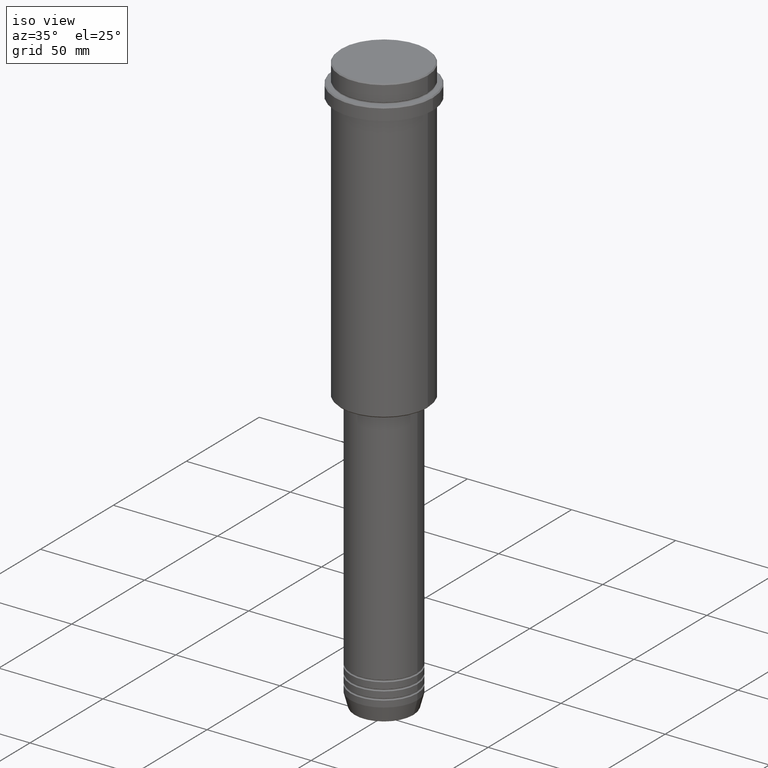
[diagram: clean part render]
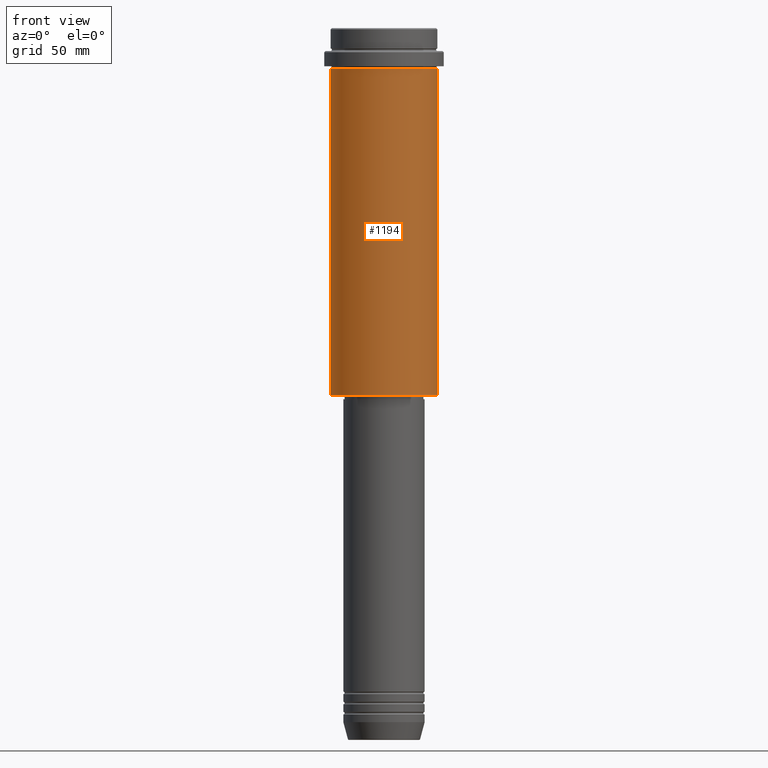
[diagram: tour spotlight — one face highlighted and labeled with its STEP entity id]
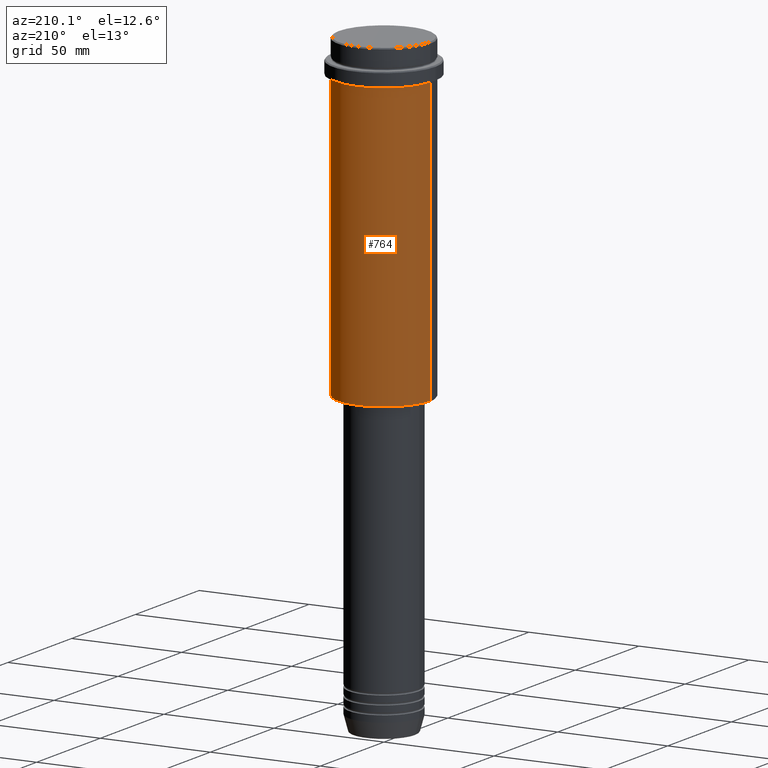
[diagram: tour spotlight — one face highlighted and labeled with its STEP entity id]
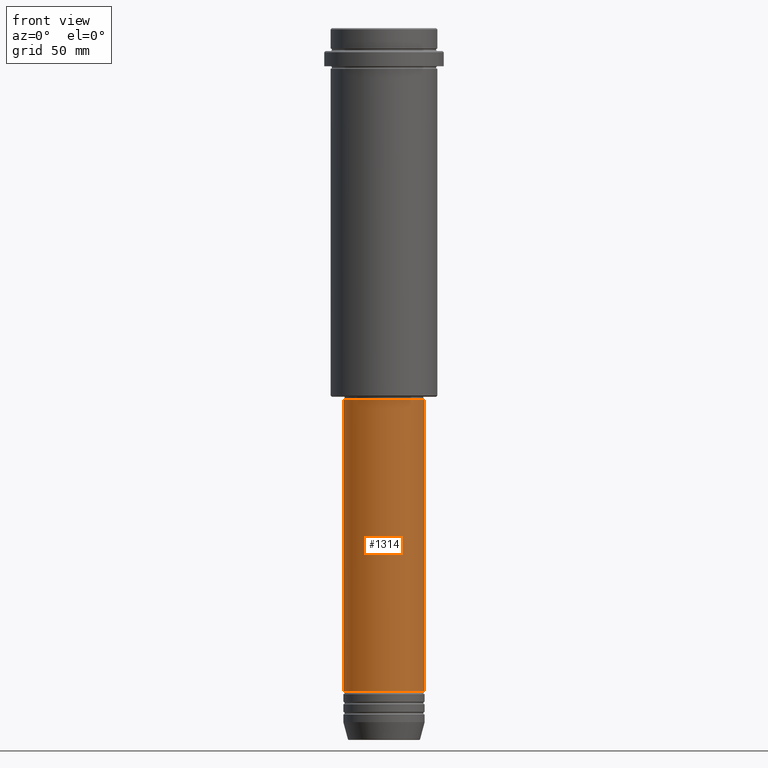
[diagram: tour spotlight — one face highlighted and labeled with its STEP entity id]
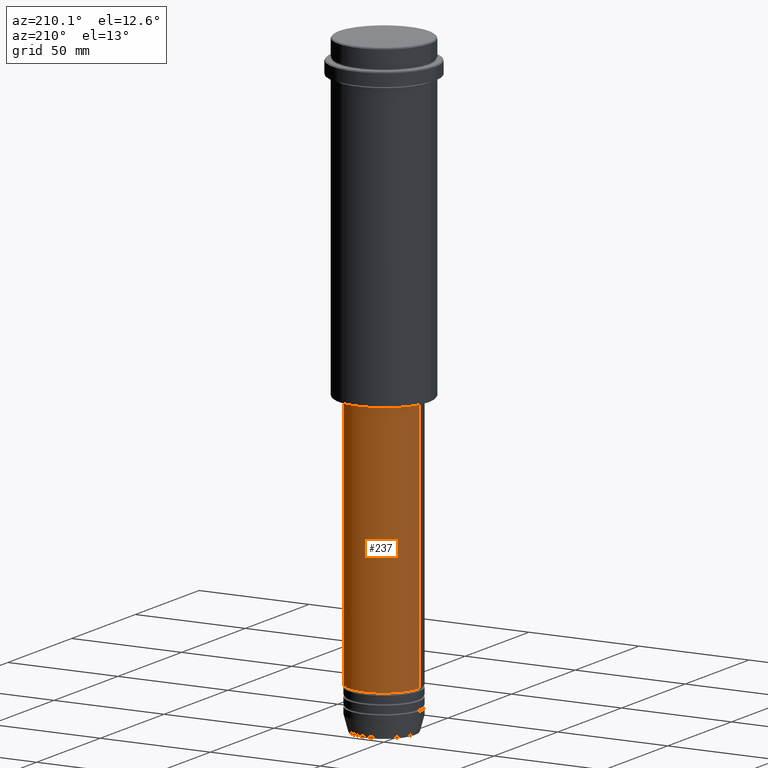
[diagram: tour spotlight — one face highlighted and labeled with its STEP entity id]
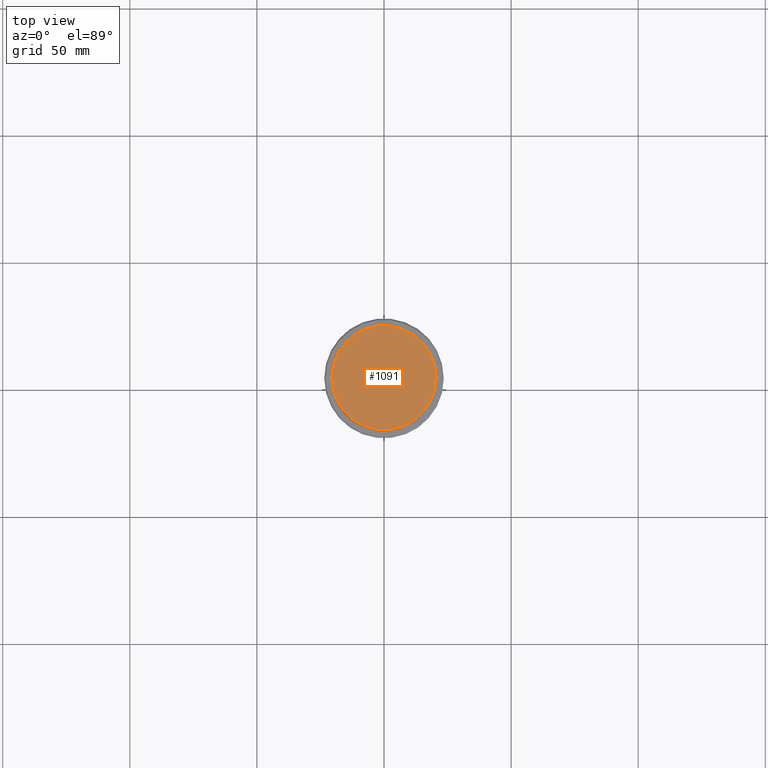
[diagram: tour spotlight — one face highlighted and labeled with its STEP entity id]
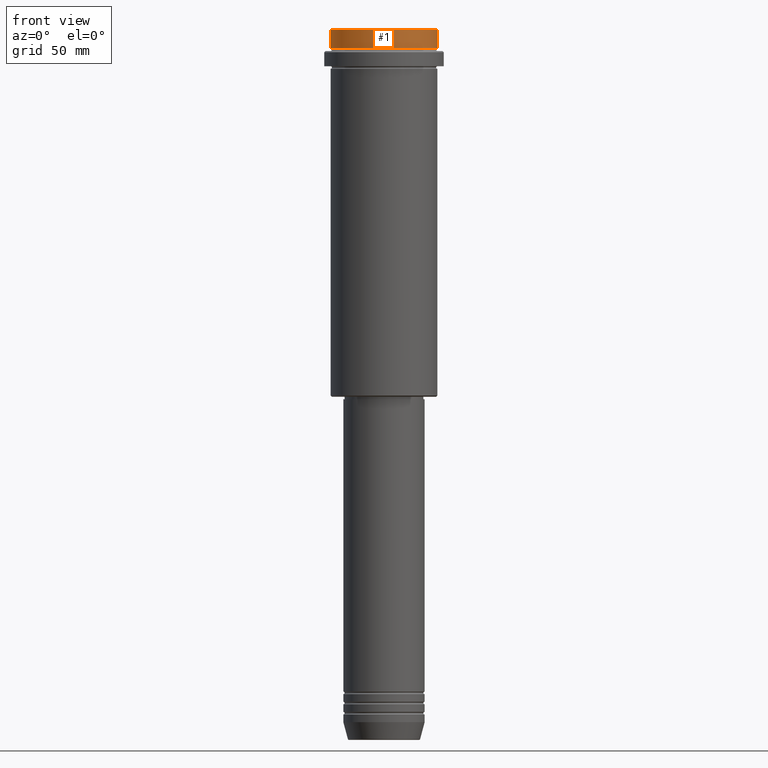
[diagram: tour spotlight — one face highlighted and labeled with its STEP entity id]
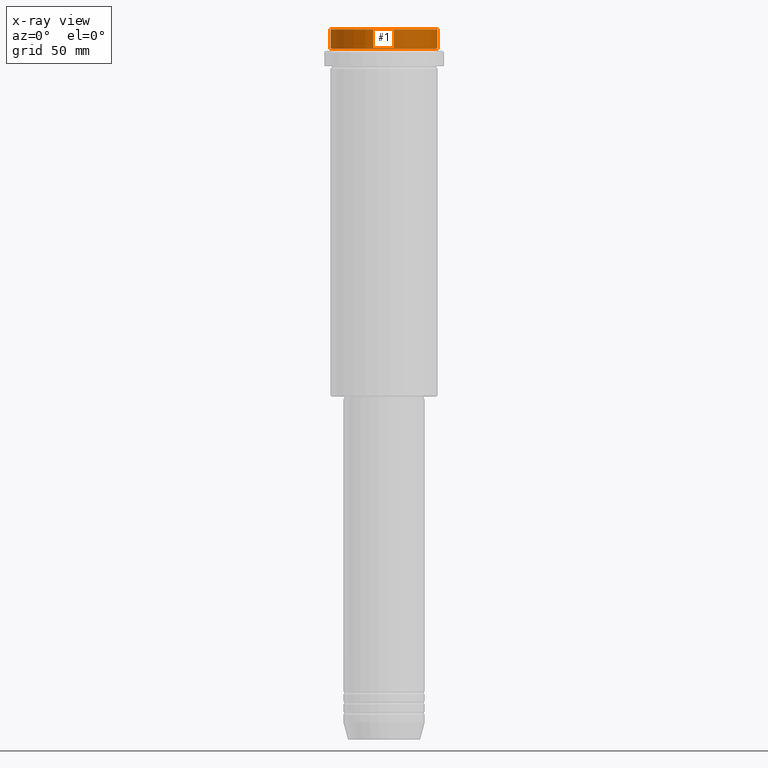
[diagram: x-ray of the same camera — body ghosted, this tour face saturated]
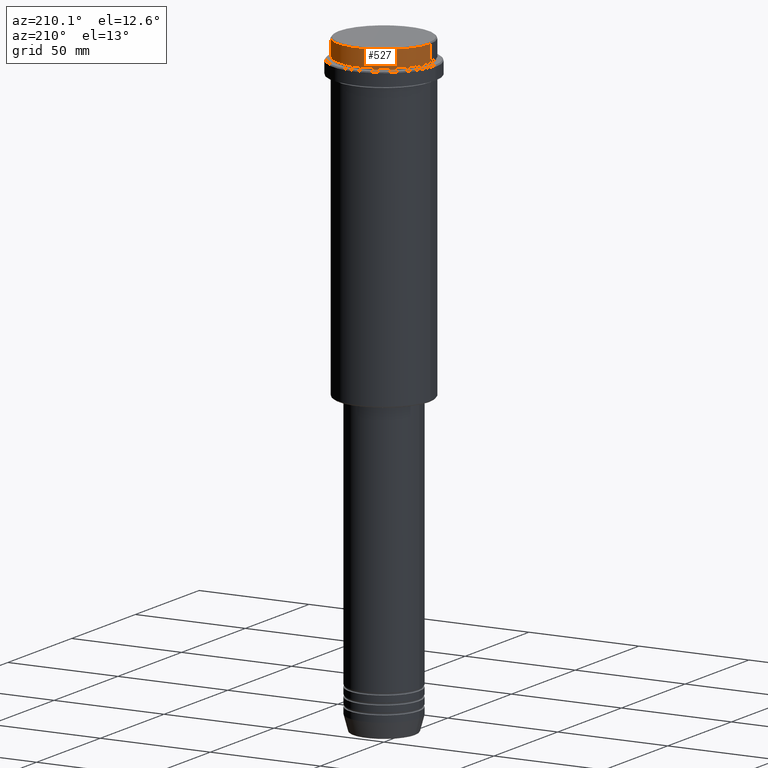
[diagram: tour spotlight — one face highlighted and labeled with its STEP entity id]
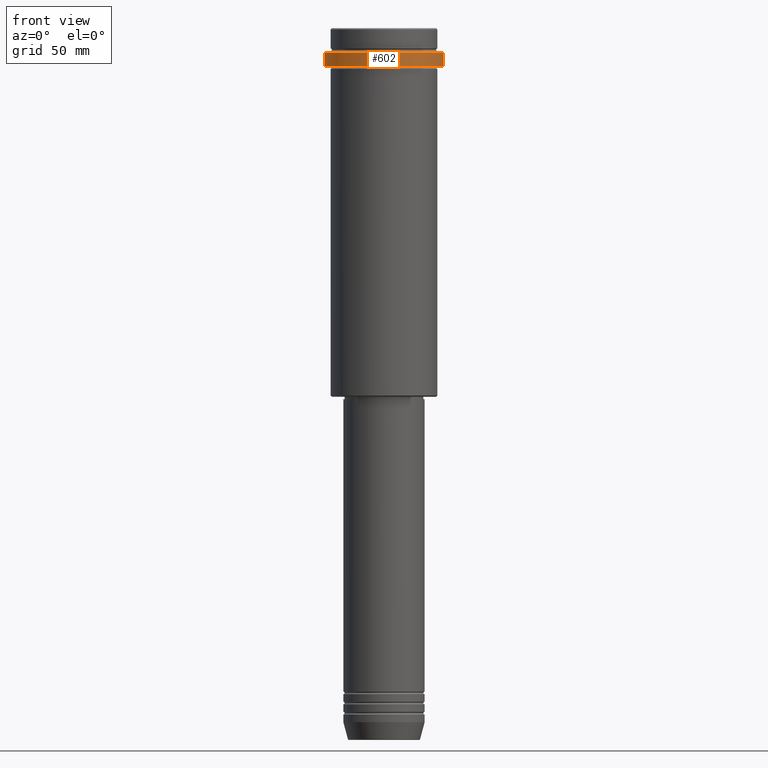
[diagram: tour spotlight — one face highlighted and labeled with its STEP entity id]
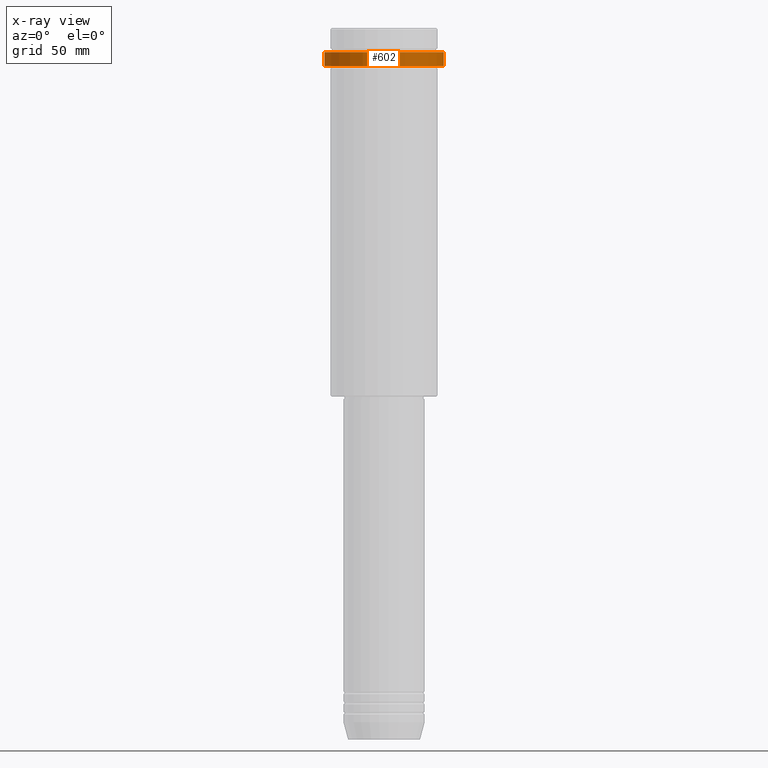
[diagram: x-ray of the same camera — body ghosted, this tour face saturated]
A machine part: a face-by-face anatomy tour. The part has 52 B-rep faces; the first image is the clean iso view, then the 8 largest visible faces are spotlighted one at a time (largest first), each with its STEP entity span.

Face 1 — front view, entity #1194. In plain terms, the highlighted cylindrical surface (partial cylindrical patch) has radius 21 mm, axis along (-0, -0, 1).
Definition (entity closure, byte-faithful):
#7 = CARTESIAN_POINT ( 'NONE',  ( 20.99999999999999645, 0.000000000000000000, -16.00000000000000355 ) ) ;
#22 = DIRECTION ( 'NONE',  ( -1.000000000000000000, 0.000000000000000000, 0.000000000000000000 ) ) ;
#104 = CARTESIAN_POINT ( 'NONE',  ( -20.99999999999999645, 2.571758278209441267E-15, 0.000000000000000000 ) ) ;
#219 = EDGE_LOOP ( 'NONE', ( #696, #614, #1352, #374 ) ) ;
#295 = DIRECTION ( 'NONE',  ( 1.000000000000000000, 0.000000000000000000, 0.000000000000000000 ) ) ;
#301 = AXIS2_PLACEMENT_3D ( 'NONE', #518, #1281, #295 ) ;
#347 = EDGE_CURVE ( 'NONE', #382, #559, #783, .T. ) ;
#361 = DIRECTION ( 'NONE',  ( -0.000000000000000000, -0.000000000000000000, 1.000000000000000000 ) ) ;
#374 = ORIENTED_EDGE ( 'NONE', *, *, #1020, .F. ) ;
#382 = VERTEX_POINT ( 'NONE', #1235 ) ;
#493 = DIRECTION ( 'NONE',  ( -0.000000000000000000, -0.000000000000000000, 1.000000000000000000 ) ) ;
#510 = CARTESIAN_POINT ( 'NONE',  ( 20.99999999999999645, 0.000000000000000000, -144.5000000000000568 ) ) ;
#518 = CARTESIAN_POINT ( 'NONE',  ( 0.000000000000000000, 0.000000000000000000, -16.00000000000000355 ) ) ;
#559 = VERTEX_POINT ( 'NONE', #510 ) ;
#579 = CYLINDRICAL_SURFACE ( 'NONE', #1265, 20.99999999999999645 ) ;
#614 = ORIENTED_EDGE ( 'NONE', *, *, #347, .T. ) ;
#647 = LINE ( 'NONE', #104, #1125 ) ;
#680 = EDGE_CURVE ( 'NONE', #382, #1226, #647, .T. ) ;
#696 = ORIENTED_EDGE ( 'NONE', *, *, #680, .F. ) ;
#700 = DIRECTION ( 'NONE',  ( 1.000000000000000000, 0.000000000000000000, 0.000000000000000000 ) ) ;
#783 = CIRCLE ( 'NONE', #1130, 20.99999999999999645 ) ;
#812 = CARTESIAN_POINT ( 'NONE',  ( 20.99999999999999645, 0.000000000000000000, 0.000000000000000000 ) ) ;
#833 = DIRECTION ( 'NONE',  ( -0.000000000000000000, -0.000000000000000000, 1.000000000000000000 ) ) ;
#860 = VERTEX_POINT ( 'NONE', #7 ) ;
#869 = VECTOR ( 'NONE', #833, 1000.000000000000000 ) ;
#871 = CARTESIAN_POINT ( 'NONE',  ( 0.000000000000000000, 0.000000000000000000, -144.5000000000000568 ) ) ;
#918 = CIRCLE ( 'NONE', #301, 20.99999999999999645 ) ;
#961 = EDGE_CURVE ( 'NONE', #559, #860, #1057, .T. ) ;
#999 = CARTESIAN_POINT ( 'NONE',  ( -20.99999999999999645, 2.571758278209441267E-15, -16.00000000000000355 ) ) ;
#1020 = EDGE_CURVE ( 'NONE', #1226, #860, #918, .T. ) ;
#1057 = LINE ( 'NONE', #812, #869 ) ;
#1125 = VECTOR ( 'NONE', #493, 1000.000000000000000 ) ;
#1130 = AXIS2_PLACEMENT_3D ( 'NONE', #871, #361, #22 ) ;
#1194 = ADVANCED_FACE ( 'NONE', ( #1328 ), #579, .T. ) ;
#1214 = DIRECTION ( 'NONE',  ( -0.000000000000000000, -0.000000000000000000, 1.000000000000000000 ) ) ;
#1226 = VERTEX_POINT ( 'NONE', #999 ) ;
#1235 = CARTESIAN_POINT ( 'NONE',  ( -20.99999999999999645, 2.571758278209441267E-15, -144.5000000000000568 ) ) ;
#1265 = AXIS2_PLACEMENT_3D ( 'NONE', #1320, #1214, #700 ) ;
#1281 = DIRECTION ( 'NONE',  ( -0.000000000000000000, -0.000000000000000000, 1.000000000000000000 ) ) ;
#1320 = CARTESIAN_POINT ( 'NONE',  ( 0.000000000000000000, 0.000000000000000000, 0.000000000000000000 ) ) ;
#1328 = FACE_OUTER_BOUND ( 'NONE', #219, .T. ) ;
#1352 = ORIENTED_EDGE ( 'NONE', *, *, #961, .T. ) ;

Face 2 — auxiliary view, entity #764. In plain terms, the highlighted cylindrical surface (partial cylindrical patch) has radius 21 mm, axis along (-0, -0, 1).
Definition (entity closure, byte-faithful):
#7 = CARTESIAN_POINT ( 'NONE',  ( 20.99999999999999645, 0.000000000000000000, -16.00000000000000355 ) ) ;
#47 = CIRCLE ( 'NONE', #556, 20.99999999999999645 ) ;
#93 = AXIS2_PLACEMENT_3D ( 'NONE', #507, #1072, #395 ) ;
#104 = CARTESIAN_POINT ( 'NONE',  ( -20.99999999999999645, 2.571758278209441267E-15, 0.000000000000000000 ) ) ;
#215 = EDGE_LOOP ( 'NONE', ( #1342, #238, #1293, #275 ) ) ;
#233 = CYLINDRICAL_SURFACE ( 'NONE', #460, 20.99999999999999645 ) ;
#238 = ORIENTED_EDGE ( 'NONE', *, *, #680, .T. ) ;
#240 = DIRECTION ( 'NONE',  ( 1.000000000000000000, 0.000000000000000000, 0.000000000000000000 ) ) ;
#275 = ORIENTED_EDGE ( 'NONE', *, *, #961, .F. ) ;
#368 = CARTESIAN_POINT ( 'NONE',  ( 0.000000000000000000, 0.000000000000000000, 0.000000000000000000 ) ) ;
#382 = VERTEX_POINT ( 'NONE', #1235 ) ;
#395 = DIRECTION ( 'NONE',  ( 1.000000000000000000, 0.000000000000000000, 0.000000000000000000 ) ) ;
#460 = AXIS2_PLACEMENT_3D ( 'NONE', #368, #1021, #240 ) ;
#493 = DIRECTION ( 'NONE',  ( -0.000000000000000000, -0.000000000000000000, 1.000000000000000000 ) ) ;
#507 = CARTESIAN_POINT ( 'NONE',  ( 0.000000000000000000, 0.000000000000000000, -16.00000000000000355 ) ) ;
#510 = CARTESIAN_POINT ( 'NONE',  ( 20.99999999999999645, 0.000000000000000000, -144.5000000000000568 ) ) ;
#556 = AXIS2_PLACEMENT_3D ( 'NONE', #905, #1417, #1334 ) ;
#559 = VERTEX_POINT ( 'NONE', #510 ) ;
#635 = EDGE_CURVE ( 'NONE', #860, #1226, #868, .T. ) ;
#647 = LINE ( 'NONE', #104, #1125 ) ;
#680 = EDGE_CURVE ( 'NONE', #382, #1226, #647, .T. ) ;
#764 = ADVANCED_FACE ( 'NONE', ( #780 ), #233, .T. ) ;
#780 = FACE_OUTER_BOUND ( 'NONE', #215, .T. ) ;
#812 = CARTESIAN_POINT ( 'NONE',  ( 20.99999999999999645, 0.000000000000000000, 0.000000000000000000 ) ) ;
#833 = DIRECTION ( 'NONE',  ( -0.000000000000000000, -0.000000000000000000, 1.000000000000000000 ) ) ;
#860 = VERTEX_POINT ( 'NONE', #7 ) ;
#868 = CIRCLE ( 'NONE', #93, 20.99999999999999645 ) ;
#869 = VECTOR ( 'NONE', #833, 1000.000000000000000 ) ;
#905 = CARTESIAN_POINT ( 'NONE',  ( 0.000000000000000000, 0.000000000000000000, -144.5000000000000568 ) ) ;
#961 = EDGE_CURVE ( 'NONE', #559, #860, #1057, .T. ) ;
#999 = CARTESIAN_POINT ( 'NONE',  ( -20.99999999999999645, 2.571758278209441267E-15, -16.00000000000000355 ) ) ;
#1021 = DIRECTION ( 'NONE',  ( -0.000000000000000000, -0.000000000000000000, 1.000000000000000000 ) ) ;
#1057 = LINE ( 'NONE', #812, #869 ) ;
#1072 = DIRECTION ( 'NONE',  ( -0.000000000000000000, -0.000000000000000000, 1.000000000000000000 ) ) ;
#1125 = VECTOR ( 'NONE', #493, 1000.000000000000000 ) ;
#1223 = EDGE_CURVE ( 'NONE', #559, #382, #47, .T. ) ;
#1226 = VERTEX_POINT ( 'NONE', #999 ) ;
#1235 = CARTESIAN_POINT ( 'NONE',  ( -20.99999999999999645, 2.571758278209441267E-15, -144.5000000000000568 ) ) ;
#1293 = ORIENTED_EDGE ( 'NONE', *, *, #635, .F. ) ;
#1334 = DIRECTION ( 'NONE',  ( -1.000000000000000000, 0.000000000000000000, 0.000000000000000000 ) ) ;
#1342 = ORIENTED_EDGE ( 'NONE', *, *, #1223, .T. ) ;
#1417 = DIRECTION ( 'NONE',  ( -0.000000000000000000, -0.000000000000000000, 1.000000000000000000 ) ) ;

Face 3 — front view, entity #1314. In plain terms, the highlighted cylindrical surface (partial cylindrical patch) has radius 16 mm, axis along (-0, -0, 1).
Definition (entity closure, byte-faithful):
#2 = EDGE_CURVE ( 'NONE', #862, #798, #946, .T. ) ;
#85 = EDGE_CURVE ( 'NONE', #320, #798, #190, .T. ) ;
#154 = FACE_OUTER_BOUND ( 'NONE', #482, .T. ) ;
#172 = ORIENTED_EDGE ( 'NONE', *, *, #85, .F. ) ;
#190 = CIRCLE ( 'NONE', #305, 16.00000000000000355 ) ;
#228 = CIRCLE ( 'NONE', #1270, 16.00000000000000000 ) ;
#263 = CARTESIAN_POINT ( 'NONE',  ( -16.00000000000000355, 1.959434878635765526E-15, -146.0000000000000284 ) ) ;
#264 = DIRECTION ( 'NONE',  ( -0.000000000000000000, -0.000000000000000000, 1.000000000000000000 ) ) ;
#305 = AXIS2_PLACEMENT_3D ( 'NONE', #1192, #854, #882 ) ;
#320 = VERTEX_POINT ( 'NONE', #263 ) ;
#396 = CARTESIAN_POINT ( 'NONE',  ( 0.000000000000000000, 0.000000000000000000, 0.000000000000000000 ) ) ;
#473 = DIRECTION ( 'NONE',  ( 1.000000000000000000, 0.000000000000000000, 0.000000000000000000 ) ) ;
#482 = EDGE_LOOP ( 'NONE', ( #805, #818, #879, #172 ) ) ;
#539 = EDGE_CURVE ( 'NONE', #595, #862, #228, .T. ) ;
#595 = VERTEX_POINT ( 'NONE', #1387 ) ;
#659 = EDGE_CURVE ( 'NONE', #595, #320, #808, .T. ) ;
#722 = DIRECTION ( 'NONE',  ( -0.000000000000000000, -0.000000000000000000, 1.000000000000000000 ) ) ;
#798 = VERTEX_POINT ( 'NONE', #1105 ) ;
#805 = ORIENTED_EDGE ( 'NONE', *, *, #659, .F. ) ;
#808 = LINE ( 'NONE', #1061, #1040 ) ;
#818 = ORIENTED_EDGE ( 'NONE', *, *, #539, .T. ) ;
#854 = DIRECTION ( 'NONE',  ( -0.000000000000000000, -0.000000000000000000, 1.000000000000000000 ) ) ;
#862 = VERTEX_POINT ( 'NONE', #1321 ) ;
#879 = ORIENTED_EDGE ( 'NONE', *, *, #2, .T. ) ;
#882 = DIRECTION ( 'NONE',  ( 1.000000000000000000, 0.000000000000000000, 0.000000000000000000 ) ) ;
#946 = LINE ( 'NONE', #1378, #1346 ) ;
#951 = CYLINDRICAL_SURFACE ( 'NONE', #1153, 16.00000000000000000 ) ;
#1033 = DIRECTION ( 'NONE',  ( 1.000000000000000000, 0.000000000000000000, 0.000000000000000000 ) ) ;
#1040 = VECTOR ( 'NONE', #264, 1000.000000000000000 ) ;
#1061 = CARTESIAN_POINT ( 'NONE',  ( -16.00000000000000000, 1.959434878635765131E-15, 0.000000000000000000 ) ) ;
#1105 = CARTESIAN_POINT ( 'NONE',  ( 16.00000000000000355, 0.000000000000000000, -146.0000000000000284 ) ) ;
#1153 = AXIS2_PLACEMENT_3D ( 'NONE', #396, #722, #1033 ) ;
#1170 = DIRECTION ( 'NONE',  ( -0.000000000000000000, -0.000000000000000000, 1.000000000000000000 ) ) ;
#1192 = CARTESIAN_POINT ( 'NONE',  ( 0.000000000000000000, 0.000000000000000000, -146.0000000000000284 ) ) ;
#1270 = AXIS2_PLACEMENT_3D ( 'NONE', #1358, #1349, #473 ) ;
#1314 = ADVANCED_FACE ( 'NONE', ( #154 ), #951, .T. ) ;
#1321 = CARTESIAN_POINT ( 'NONE',  ( 16.00000000000000000, 0.000000000000000000, -260.9999999999998863 ) ) ;
#1346 = VECTOR ( 'NONE', #1170, 1000.000000000000000 ) ;
#1349 = DIRECTION ( 'NONE',  ( -0.000000000000000000, -0.000000000000000000, 1.000000000000000000 ) ) ;
#1358 = CARTESIAN_POINT ( 'NONE',  ( 0.000000000000000000, 0.000000000000000000, -260.9999999999998863 ) ) ;
#1378 = CARTESIAN_POINT ( 'NONE',  ( 16.00000000000000000, 0.000000000000000000, 0.000000000000000000 ) ) ;
#1387 = CARTESIAN_POINT ( 'NONE',  ( -16.00000000000000000, 1.959434878635765131E-15, -260.9999999999998863 ) ) ;

Face 4 — auxiliary view, entity #237. In plain terms, the highlighted cylindrical surface (partial cylindrical patch) has radius 16 mm, axis along (-0, -0, 1).
Definition (entity closure, byte-faithful):
#2 = EDGE_CURVE ( 'NONE', #862, #798, #946, .T. ) ;
#165 = CIRCLE ( 'NONE', #1101, 16.00000000000000000 ) ;
#187 = DIRECTION ( 'NONE',  ( 1.000000000000000000, 0.000000000000000000, 0.000000000000000000 ) ) ;
#206 = CIRCLE ( 'NONE', #397, 16.00000000000000355 ) ;
#237 = ADVANCED_FACE ( 'NONE', ( #1317 ), #975, .T. ) ;
#252 = EDGE_LOOP ( 'NONE', ( #915, #969, #744, #429 ) ) ;
#263 = CARTESIAN_POINT ( 'NONE',  ( -16.00000000000000355, 1.959434878635765526E-15, -146.0000000000000284 ) ) ;
#264 = DIRECTION ( 'NONE',  ( -0.000000000000000000, -0.000000000000000000, 1.000000000000000000 ) ) ;
#320 = VERTEX_POINT ( 'NONE', #263 ) ;
#390 = DIRECTION ( 'NONE',  ( -0.000000000000000000, -0.000000000000000000, 1.000000000000000000 ) ) ;
#397 = AXIS2_PLACEMENT_3D ( 'NONE', #1174, #390, #187 ) ;
#429 = ORIENTED_EDGE ( 'NONE', *, *, #2, .F. ) ;
#549 = CARTESIAN_POINT ( 'NONE',  ( 0.000000000000000000, 0.000000000000000000, -260.9999999999998863 ) ) ;
#595 = VERTEX_POINT ( 'NONE', #1387 ) ;
#659 = EDGE_CURVE ( 'NONE', #595, #320, #808, .T. ) ;
#744 = ORIENTED_EDGE ( 'NONE', *, *, #892, .F. ) ;
#798 = VERTEX_POINT ( 'NONE', #1105 ) ;
#808 = LINE ( 'NONE', #1061, #1040 ) ;
#853 = DIRECTION ( 'NONE',  ( -0.000000000000000000, -0.000000000000000000, 1.000000000000000000 ) ) ;
#862 = VERTEX_POINT ( 'NONE', #1321 ) ;
#892 = EDGE_CURVE ( 'NONE', #798, #320, #206, .T. ) ;
#915 = ORIENTED_EDGE ( 'NONE', *, *, #1048, .T. ) ;
#946 = LINE ( 'NONE', #1378, #1346 ) ;
#969 = ORIENTED_EDGE ( 'NONE', *, *, #659, .T. ) ;
#975 = CYLINDRICAL_SURFACE ( 'NONE', #1062, 16.00000000000000000 ) ;
#1040 = VECTOR ( 'NONE', #264, 1000.000000000000000 ) ;
#1048 = EDGE_CURVE ( 'NONE', #862, #595, #165, .T. ) ;
#1061 = CARTESIAN_POINT ( 'NONE',  ( -16.00000000000000000, 1.959434878635765131E-15, 0.000000000000000000 ) ) ;
#1062 = AXIS2_PLACEMENT_3D ( 'NONE', #1099, #1106, #1400 ) ;
#1099 = CARTESIAN_POINT ( 'NONE',  ( 0.000000000000000000, 0.000000000000000000, 0.000000000000000000 ) ) ;
#1101 = AXIS2_PLACEMENT_3D ( 'NONE', #549, #853, #1181 ) ;
#1105 = CARTESIAN_POINT ( 'NONE',  ( 16.00000000000000355, 0.000000000000000000, -146.0000000000000284 ) ) ;
#1106 = DIRECTION ( 'NONE',  ( -0.000000000000000000, -0.000000000000000000, 1.000000000000000000 ) ) ;
#1170 = DIRECTION ( 'NONE',  ( -0.000000000000000000, -0.000000000000000000, 1.000000000000000000 ) ) ;
#1174 = CARTESIAN_POINT ( 'NONE',  ( 0.000000000000000000, 0.000000000000000000, -146.0000000000000284 ) ) ;
#1181 = DIRECTION ( 'NONE',  ( 1.000000000000000000, 0.000000000000000000, 0.000000000000000000 ) ) ;
#1317 = FACE_OUTER_BOUND ( 'NONE', #252, .T. ) ;
#1321 = CARTESIAN_POINT ( 'NONE',  ( 16.00000000000000000, 0.000000000000000000, -260.9999999999998863 ) ) ;
#1346 = VECTOR ( 'NONE', #1170, 1000.000000000000000 ) ;
#1378 = CARTESIAN_POINT ( 'NONE',  ( 16.00000000000000000, 0.000000000000000000, 0.000000000000000000 ) ) ;
#1387 = CARTESIAN_POINT ( 'NONE',  ( -16.00000000000000000, 1.959434878635765131E-15, -260.9999999999998863 ) ) ;
#1400 = DIRECTION ( 'NONE',  ( 1.000000000000000000, 0.000000000000000000, 0.000000000000000000 ) ) ;

Face 5 — top view, entity #1091. In plain terms, the highlighted planar face has unit normal (0, -0, 1).
Definition (entity closure, byte-faithful):
#60 = ORIENTED_EDGE ( 'NONE', *, *, #1019, .T. ) ;
#70 = DIRECTION ( 'NONE',  ( 1.000000000000000000, 0.000000000000000000, 0.000000000000000000 ) ) ;
#111 = CIRCLE ( 'NONE', #349, 20.50000000000004619 ) ;
#143 = ORIENTED_EDGE ( 'NONE', *, *, #1050, .T. ) ;
#213 = VERTEX_POINT ( 'NONE', #495 ) ;
#338 = DIRECTION ( 'NONE',  ( 0.000000000000000000, -0.000000000000000000, 1.000000000000000000 ) ) ;
#349 = AXIS2_PLACEMENT_3D ( 'NONE', #620, #941, #70 ) ;
#495 = CARTESIAN_POINT ( 'NONE',  ( -20.50000000000004619, 0.000000000000000000, 0.000000000000000000 ) ) ;
#609 = VERTEX_POINT ( 'NONE', #1071 ) ;
#620 = CARTESIAN_POINT ( 'NONE',  ( 0.000000000000000000, 0.000000000000000000, 0.000000000000000000 ) ) ;
#672 = AXIS2_PLACEMENT_3D ( 'NONE', #742, #870, #1297 ) ;
#740 = AXIS2_PLACEMENT_3D ( 'NONE', #755, #338, #1294 ) ;
#742 = CARTESIAN_POINT ( 'NONE',  ( 0.000000000000000000, 0.000000000000000000, 0.000000000000000000 ) ) ;
#755 = CARTESIAN_POINT ( 'NONE',  ( 0.000000000000000000, 0.000000000000000000, 0.000000000000000000 ) ) ;
#857 = EDGE_LOOP ( 'NONE', ( #60, #143 ) ) ;
#858 = PLANE ( 'NONE',  #740 ) ;
#870 = DIRECTION ( 'NONE',  ( -0.000000000000000000, -0.000000000000000000, 1.000000000000000000 ) ) ;
#941 = DIRECTION ( 'NONE',  ( -0.000000000000000000, -0.000000000000000000, 1.000000000000000000 ) ) ;
#966 = FACE_OUTER_BOUND ( 'NONE', #857, .T. ) ;
#1019 = EDGE_CURVE ( 'NONE', #213, #609, #111, .T. ) ;
#1050 = EDGE_CURVE ( 'NONE', #609, #213, #1287, .T. ) ;
#1071 = CARTESIAN_POINT ( 'NONE',  ( 20.50000000000004619, 2.541142108230760635E-15, 0.000000000000000000 ) ) ;
#1091 = ADVANCED_FACE ( 'NONE', ( #966 ), #858, .T. ) ;
#1287 = CIRCLE ( 'NONE', #672, 20.50000000000004619 ) ;
#1294 = DIRECTION ( 'NONE',  ( 1.000000000000000000, 0.000000000000000000, 0.000000000000000000 ) ) ;
#1297 = DIRECTION ( 'NONE',  ( 1.000000000000000000, 0.000000000000000000, 0.000000000000000000 ) ) ;

Face 6 — front view, entity #1. An x-ray twin of the same camera follows (body ghosted, this face saturated) — the face is partly hidden behind the body. In plain terms, the highlighted cylindrical surface (partial cylindrical patch) has radius 21 mm, axis along (-0, -0, 1).
Definition (entity closure, byte-faithful):
#1 = ADVANCED_FACE ( 'NONE', ( #1288 ), #743, .T. ) ;
#11 = CARTESIAN_POINT ( 'NONE',  ( 20.99999999999999645, 0.000000000000000000, -0.4999999999999796274 ) ) ;
#16 = AXIS2_PLACEMENT_3D ( 'NONE', #1184, #196, #622 ) ;
#20 = VECTOR ( 'NONE', #469, 1000.000000000000000 ) ;
#61 = DIRECTION ( 'NONE',  ( 1.000000000000000000, 0.000000000000000000, 0.000000000000000000 ) ) ;
#64 = CARTESIAN_POINT ( 'NONE',  ( -20.99999999999999645, 2.571758278209441267E-15, -7.999999999999998224 ) ) ;
#169 = CARTESIAN_POINT ( 'NONE',  ( 0.000000000000000000, 0.000000000000000000, -0.4999999999999796274 ) ) ;
#196 = DIRECTION ( 'NONE',  ( -0.000000000000000000, -0.000000000000000000, 1.000000000000000000 ) ) ;
#246 = LINE ( 'NONE', #671, #1311 ) ;
#356 = CARTESIAN_POINT ( 'NONE',  ( 20.99999999999999645, 0.000000000000000000, -7.999999999999998224 ) ) ;
#452 = CARTESIAN_POINT ( 'NONE',  ( 0.000000000000000000, 0.000000000000000000, -7.999999999999998224 ) ) ;
#469 = DIRECTION ( 'NONE',  ( -0.000000000000000000, -0.000000000000000000, 1.000000000000000000 ) ) ;
#622 = DIRECTION ( 'NONE',  ( 1.000000000000000000, 0.000000000000000000, 0.000000000000000000 ) ) ;
#671 = CARTESIAN_POINT ( 'NONE',  ( -20.99999999999999645, 2.571758278209441267E-15, 0.000000000000000000 ) ) ;
#676 = EDGE_CURVE ( 'NONE', #699, #1232, #1330, .T. ) ;
#678 = ORIENTED_EDGE ( 'NONE', *, *, #676, .T. ) ;
#692 = DIRECTION ( 'NONE',  ( -0.000000000000000000, -0.000000000000000000, 1.000000000000000000 ) ) ;
#699 = VERTEX_POINT ( 'NONE', #64 ) ;
#716 = AXIS2_PLACEMENT_3D ( 'NONE', #169, #1145, #61 ) ;
#743 = CYLINDRICAL_SURFACE ( 'NONE', #16, 20.99999999999999645 ) ;
#787 = CARTESIAN_POINT ( 'NONE',  ( -20.99999999999999645, 2.571758278209441267E-15, -0.4999999999999796274 ) ) ;
#797 = ORIENTED_EDGE ( 'NONE', *, *, #913, .T. ) ;
#843 = ORIENTED_EDGE ( 'NONE', *, *, #1210, .T. ) ;
#873 = DIRECTION ( 'NONE',  ( 1.000000000000000000, 0.000000000000000000, 0.000000000000000000 ) ) ;
#887 = DIRECTION ( 'NONE',  ( -0.000000000000000000, -0.000000000000000000, 1.000000000000000000 ) ) ;
#913 = EDGE_CURVE ( 'NONE', #1173, #1249, #1236, .T. ) ;
#952 = AXIS2_PLACEMENT_3D ( 'NONE', #452, #887, #873 ) ;
#1005 = CARTESIAN_POINT ( 'NONE',  ( 20.99999999999999645, 0.000000000000000000, 0.000000000000000000 ) ) ;
#1038 = ORIENTED_EDGE ( 'NONE', *, *, #1253, .F. ) ;
#1145 = DIRECTION ( 'NONE',  ( 0.000000000000000000, 0.000000000000000000, -1.000000000000000000 ) ) ;
#1173 = VERTEX_POINT ( 'NONE', #11 ) ;
#1184 = CARTESIAN_POINT ( 'NONE',  ( 0.000000000000000000, 0.000000000000000000, 0.000000000000000000 ) ) ;
#1210 = EDGE_CURVE ( 'NONE', #1232, #1173, #1227, .T. ) ;
#1219 = EDGE_LOOP ( 'NONE', ( #1038, #678, #843, #797 ) ) ;
#1227 = LINE ( 'NONE', #1005, #20 ) ;
#1232 = VERTEX_POINT ( 'NONE', #356 ) ;
#1236 = CIRCLE ( 'NONE', #716, 20.99999999999999645 ) ;
#1249 = VERTEX_POINT ( 'NONE', #787 ) ;
#1253 = EDGE_CURVE ( 'NONE', #699, #1249, #246, .T. ) ;
#1288 = FACE_OUTER_BOUND ( 'NONE', #1219, .T. ) ;
#1311 = VECTOR ( 'NONE', #692, 1000.000000000000000 ) ;
#1330 = CIRCLE ( 'NONE', #952, 20.99999999999999645 ) ;

Face 7 — auxiliary view, entity #527. In plain terms, the highlighted cylindrical surface (partial cylindrical patch) has radius 21 mm, axis along (-0, -0, 1).
Definition (entity closure, byte-faithful):
#11 = CARTESIAN_POINT ( 'NONE',  ( 20.99999999999999645, 0.000000000000000000, -0.4999999999999796274 ) ) ;
#18 = EDGE_CURVE ( 'NONE', #1249, #1173, #1127, .T. ) ;
#20 = VECTOR ( 'NONE', #469, 1000.000000000000000 ) ;
#64 = CARTESIAN_POINT ( 'NONE',  ( -20.99999999999999645, 2.571758278209441267E-15, -7.999999999999998224 ) ) ;
#67 = ORIENTED_EDGE ( 'NONE', *, *, #18, .T. ) ;
#68 = CARTESIAN_POINT ( 'NONE',  ( 0.000000000000000000, 0.000000000000000000, -7.999999999999998224 ) ) ;
#101 = ORIENTED_EDGE ( 'NONE', *, *, #1253, .T. ) ;
#123 = DIRECTION ( 'NONE',  ( 1.000000000000000000, 0.000000000000000000, 0.000000000000000000 ) ) ;
#200 = CARTESIAN_POINT ( 'NONE',  ( 0.000000000000000000, 0.000000000000000000, -0.4999999999999796274 ) ) ;
#246 = LINE ( 'NONE', #671, #1311 ) ;
#317 = ORIENTED_EDGE ( 'NONE', *, *, #1318, .T. ) ;
#356 = CARTESIAN_POINT ( 'NONE',  ( 20.99999999999999645, 0.000000000000000000, -7.999999999999998224 ) ) ;
#379 = CARTESIAN_POINT ( 'NONE',  ( 0.000000000000000000, 0.000000000000000000, 0.000000000000000000 ) ) ;
#404 = AXIS2_PLACEMENT_3D ( 'NONE', #379, #712, #796 ) ;
#469 = DIRECTION ( 'NONE',  ( -0.000000000000000000, -0.000000000000000000, 1.000000000000000000 ) ) ;
#483 = DIRECTION ( 'NONE',  ( 1.000000000000000000, 0.000000000000000000, 0.000000000000000000 ) ) ;
#500 = DIRECTION ( 'NONE',  ( -0.000000000000000000, -0.000000000000000000, 1.000000000000000000 ) ) ;
#514 = AXIS2_PLACEMENT_3D ( 'NONE', #200, #550, #123 ) ;
#527 = ADVANCED_FACE ( 'NONE', ( #1132 ), #728, .T. ) ;
#534 = CIRCLE ( 'NONE', #1327, 20.99999999999999645 ) ;
#548 = EDGE_LOOP ( 'NONE', ( #317, #101, #67, #569 ) ) ;
#550 = DIRECTION ( 'NONE',  ( 0.000000000000000000, 0.000000000000000000, -1.000000000000000000 ) ) ;
#569 = ORIENTED_EDGE ( 'NONE', *, *, #1210, .F. ) ;
#671 = CARTESIAN_POINT ( 'NONE',  ( -20.99999999999999645, 2.571758278209441267E-15, 0.000000000000000000 ) ) ;
#692 = DIRECTION ( 'NONE',  ( -0.000000000000000000, -0.000000000000000000, 1.000000000000000000 ) ) ;
#699 = VERTEX_POINT ( 'NONE', #64 ) ;
#712 = DIRECTION ( 'NONE',  ( -0.000000000000000000, -0.000000000000000000, 1.000000000000000000 ) ) ;
#728 = CYLINDRICAL_SURFACE ( 'NONE', #404, 20.99999999999999645 ) ;
#787 = CARTESIAN_POINT ( 'NONE',  ( -20.99999999999999645, 2.571758278209441267E-15, -0.4999999999999796274 ) ) ;
#796 = DIRECTION ( 'NONE',  ( 1.000000000000000000, 0.000000000000000000, 0.000000000000000000 ) ) ;
#1005 = CARTESIAN_POINT ( 'NONE',  ( 20.99999999999999645, 0.000000000000000000, 0.000000000000000000 ) ) ;
#1127 = CIRCLE ( 'NONE', #514, 20.99999999999999645 ) ;
#1132 = FACE_OUTER_BOUND ( 'NONE', #548, .T. ) ;
#1173 = VERTEX_POINT ( 'NONE', #11 ) ;
#1210 = EDGE_CURVE ( 'NONE', #1232, #1173, #1227, .T. ) ;
#1227 = LINE ( 'NONE', #1005, #20 ) ;
#1232 = VERTEX_POINT ( 'NONE', #356 ) ;
#1249 = VERTEX_POINT ( 'NONE', #787 ) ;
#1253 = EDGE_CURVE ( 'NONE', #699, #1249, #246, .T. ) ;
#1311 = VECTOR ( 'NONE', #692, 1000.000000000000000 ) ;
#1318 = EDGE_CURVE ( 'NONE', #1232, #699, #534, .T. ) ;
#1327 = AXIS2_PLACEMENT_3D ( 'NONE', #68, #500, #483 ) ;

Face 8 — front view, entity #602. An x-ray twin of the same camera follows (body ghosted, this face saturated) — the face is partly hidden behind the body. In plain terms, the highlighted cylindrical surface (partial cylindrical patch) has radius 23.5 mm, axis along (-0, -0, 1).
Definition (entity closure, byte-faithful):
#62 = DIRECTION ( 'NONE',  ( -0.000000000000000000, -0.000000000000000000, 1.000000000000000000 ) ) ;
#80 = CARTESIAN_POINT ( 'NONE',  ( 0.000000000000000000, 0.000000000000000000, -15.00000000000000178 ) ) ;
#96 = CARTESIAN_POINT ( 'NONE',  ( 23.50000000000000355, 0.000000000000000000, -15.00000000000000178 ) ) ;
#142 = AXIS2_PLACEMENT_3D ( 'NONE', #80, #928, #1243 ) ;
#144 = VERTEX_POINT ( 'NONE', #96 ) ;
#184 = EDGE_CURVE ( 'NONE', #399, #465, #1082, .T. ) ;
#193 = CARTESIAN_POINT ( 'NONE',  ( -23.50000000000000711, 2.877919977996281109E-15, -15.00000000000000178 ) ) ;
#319 = LINE ( 'NONE', #1205, #949 ) ;
#345 = EDGE_CURVE ( 'NONE', #144, #399, #319, .T. ) ;
#393 = FACE_OUTER_BOUND ( 'NONE', #793, .T. ) ;
#399 = VERTEX_POINT ( 'NONE', #1244 ) ;
#411 = CARTESIAN_POINT ( 'NONE',  ( -23.50000000000000000, 2.877919977996280320E-15, 0.000000000000000000 ) ) ;
#465 = VERTEX_POINT ( 'NONE', #717 ) ;
#555 = EDGE_CURVE ( 'NONE', #1042, #465, #727, .T. ) ;
#602 = ADVANCED_FACE ( 'NONE', ( #393 ), #824, .T. ) ;
#667 = ORIENTED_EDGE ( 'NONE', *, *, #555, .F. ) ;
#717 = CARTESIAN_POINT ( 'NONE',  ( -23.50000000000000000, 2.877919977996280320E-15, -9.499999999999973355 ) ) ;
#727 = LINE ( 'NONE', #411, #1396 ) ;
#756 = DIRECTION ( 'NONE',  ( -0.000000000000000000, -0.000000000000000000, 1.000000000000000000 ) ) ;
#793 = EDGE_LOOP ( 'NONE', ( #667, #837, #1135, #953 ) ) ;
#824 = CYLINDRICAL_SURFACE ( 'NONE', #1076, 23.50000000000000000 ) ;
#837 = ORIENTED_EDGE ( 'NONE', *, *, #939, .T. ) ;
#910 = DIRECTION ( 'NONE',  ( 1.000000000000000000, 0.000000000000000000, 0.000000000000000000 ) ) ;
#923 = DIRECTION ( 'NONE',  ( -0.000000000000000000, -0.000000000000000000, 1.000000000000000000 ) ) ;
#928 = DIRECTION ( 'NONE',  ( -0.000000000000000000, -0.000000000000000000, 1.000000000000000000 ) ) ;
#939 = EDGE_CURVE ( 'NONE', #1042, #144, #1344, .T. ) ;
#949 = VECTOR ( 'NONE', #756, 1000.000000000000000 ) ;
#953 = ORIENTED_EDGE ( 'NONE', *, *, #184, .T. ) ;
#972 = AXIS2_PLACEMENT_3D ( 'NONE', #1136, #1017, #910 ) ;
#1017 = DIRECTION ( 'NONE',  ( 0.000000000000000000, 0.000000000000000000, -1.000000000000000000 ) ) ;
#1025 = DIRECTION ( 'NONE',  ( 1.000000000000000000, 0.000000000000000000, 0.000000000000000000 ) ) ;
#1042 = VERTEX_POINT ( 'NONE', #193 ) ;
#1076 = AXIS2_PLACEMENT_3D ( 'NONE', #1260, #923, #1025 ) ;
#1082 = CIRCLE ( 'NONE', #972, 23.50000000000000000 ) ;
#1135 = ORIENTED_EDGE ( 'NONE', *, *, #345, .T. ) ;
#1136 = CARTESIAN_POINT ( 'NONE',  ( 0.000000000000000000, 0.000000000000000000, -9.499999999999973355 ) ) ;
#1205 = CARTESIAN_POINT ( 'NONE',  ( 23.50000000000000000, 0.000000000000000000, 0.000000000000000000 ) ) ;
#1243 = DIRECTION ( 'NONE',  ( 1.000000000000000000, 0.000000000000000000, 0.000000000000000000 ) ) ;
#1244 = CARTESIAN_POINT ( 'NONE',  ( 23.50000000000000000, 0.000000000000000000, -9.499999999999973355 ) ) ;
#1260 = CARTESIAN_POINT ( 'NONE',  ( 0.000000000000000000, 0.000000000000000000, 0.000000000000000000 ) ) ;
#1344 = CIRCLE ( 'NONE', #142, 23.50000000000000355 ) ;
#1396 = VECTOR ( 'NONE', #62, 1000.000000000000000 ) ;